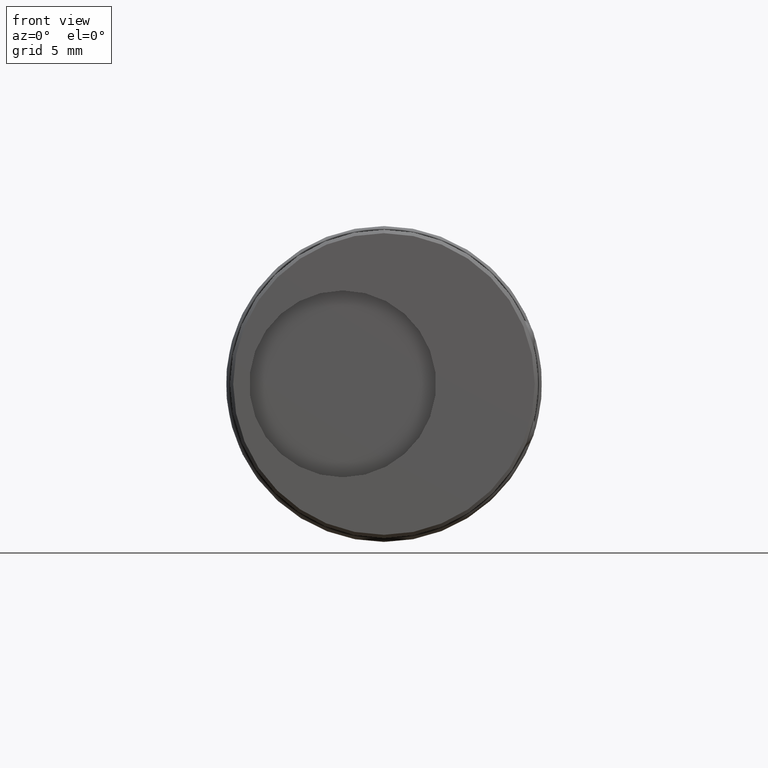
[diagram: clean part render]
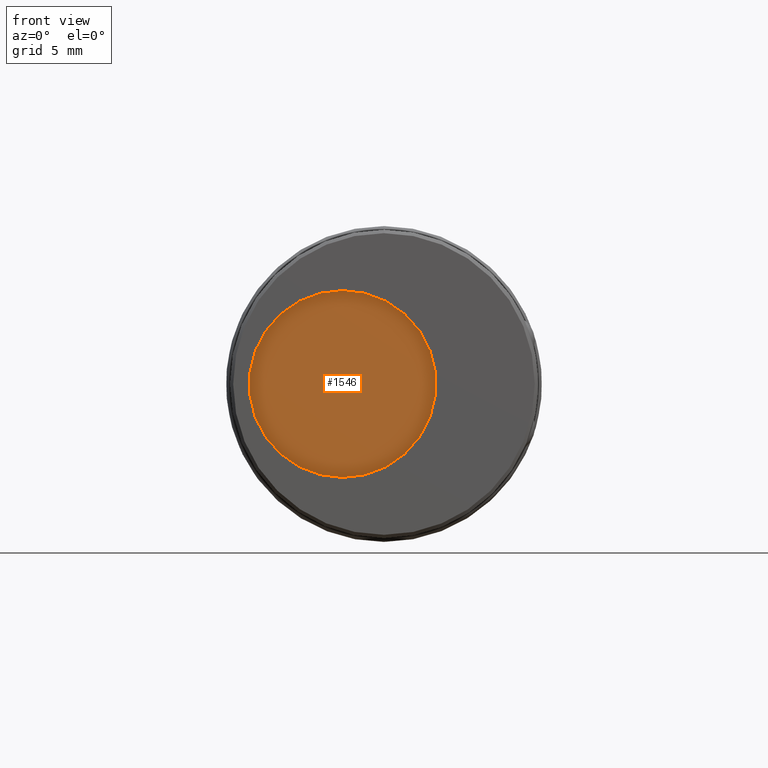
[diagram: same view with one face highlighted and labeled with its STEP entity id]
A machine part, front view. The second image highlights one B-rep face of the part: STEP entity #1546.
In plain terms, the highlighted planar face has unit normal (0, 1, 0).
Its self-contained STEP definition (entity closure, byte-faithful):
#633=CARTESIAN_POINT('',(-1.25E-1,4.7E-2,0.E0));
#634=DIRECTION('',(0.E0,1.E0,0.E0));
#635=DIRECTION('',(0.E0,0.E0,-1.E0));
#636=AXIS2_PLACEMENT_3D('',#633,#634,#635);
#638=CARTESIAN_POINT('',(-1.25E-1,4.7E-2,0.E0));
#639=DIRECTION('',(0.E0,1.E0,0.E0));
#640=DIRECTION('',(0.E0,0.E0,1.E0));
#641=AXIS2_PLACEMENT_3D('',#638,#639,#640);
#779=CARTESIAN_POINT('',(-1.25E-1,4.7E-2,-2.825E-1));
#780=CARTESIAN_POINT('',(-1.25E-1,4.7E-2,2.825E-1));
#781=VERTEX_POINT('',#779);
#782=VERTEX_POINT('',#780);
#1537=CARTESIAN_POINT('',(0.E0,4.7E-2,0.E0));
#1538=DIRECTION('',(0.E0,1.E0,0.E0));
#1539=DIRECTION('',(0.E0,0.E0,-1.E0));
#1540=AXIS2_PLACEMENT_3D('',#1537,#1538,#1539);
#1541=PLANE('',#1540);
#1542=ORIENTED_EDGE('',*,*,#1517,.T.);
#1543=ORIENTED_EDGE('',*,*,#1531,.T.);
#1544=EDGE_LOOP('',(#1542,#1543));
#1545=FACE_OUTER_BOUND('',#1544,.F.);
#637=CIRCLE('',#636,2.825E-1);
#642=CIRCLE('',#641,2.825E-1);
#1517=EDGE_CURVE('',#781,#782,#637,.T.);
#1531=EDGE_CURVE('',#782,#781,#642,.T.);
#1546=ADVANCED_FACE('',(#1545),#1541,.F.);